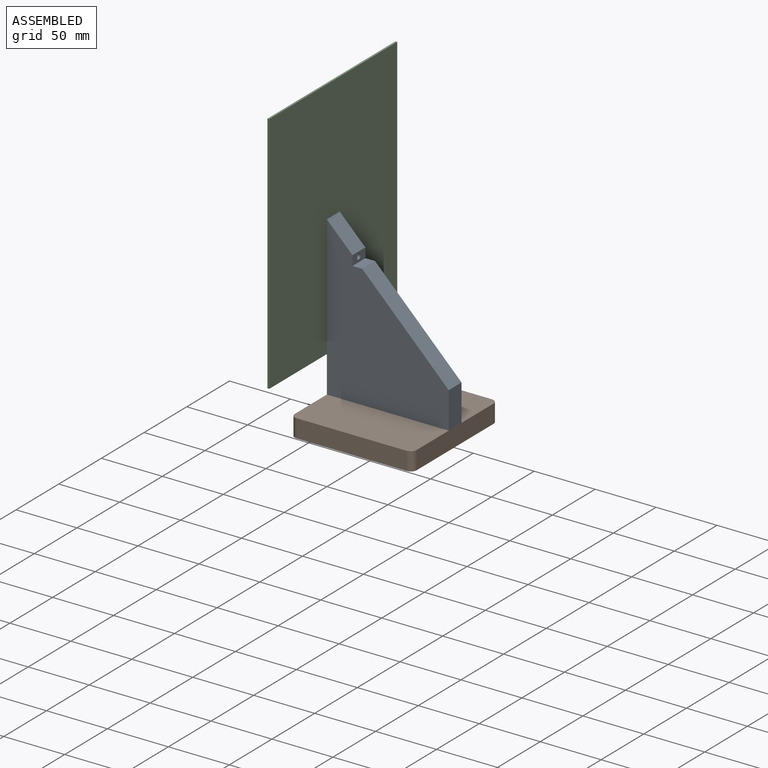
[diagram: assembled view]
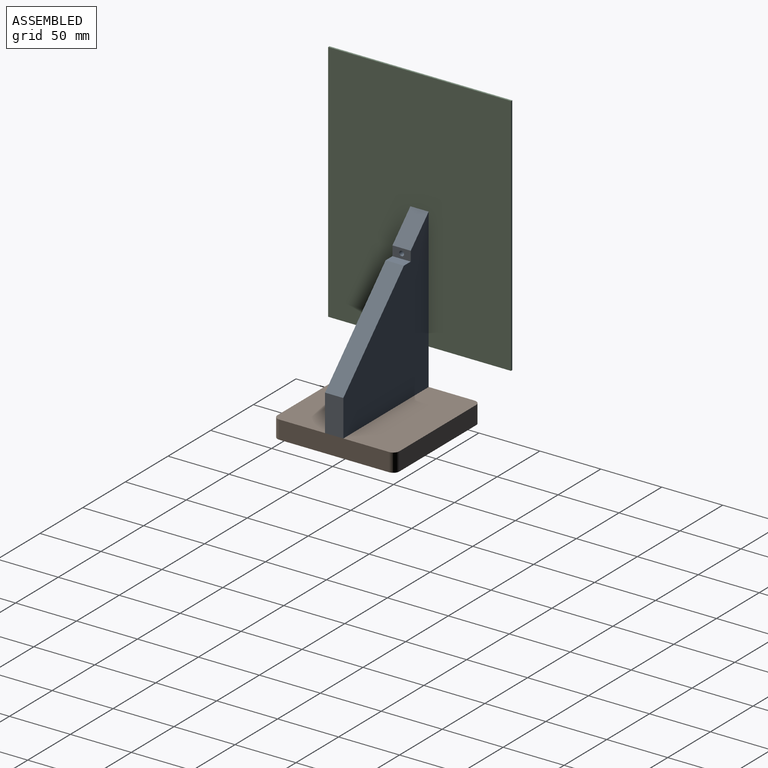
[diagram: assembled view, second angle]
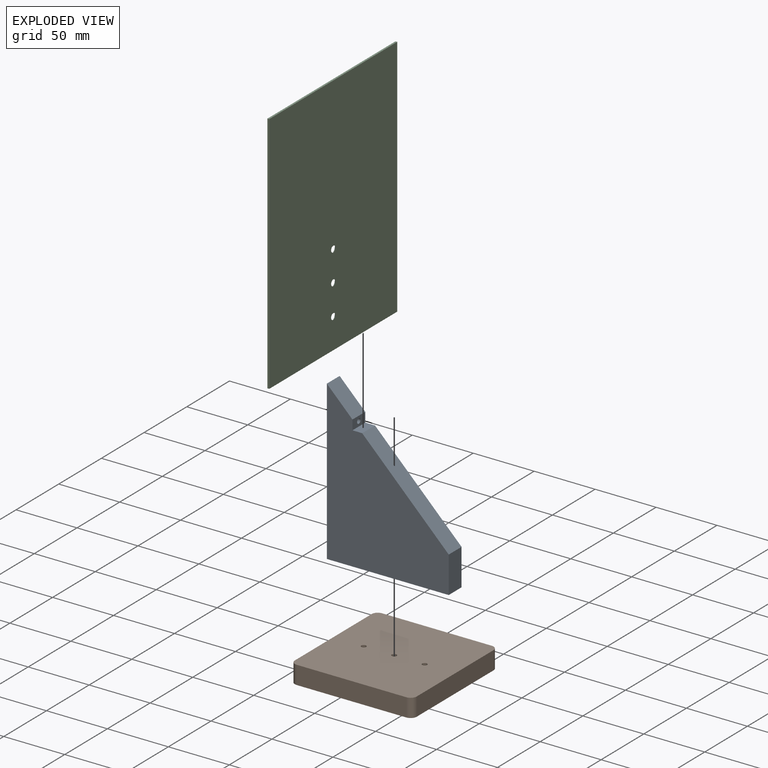
[diagram: exploded view]
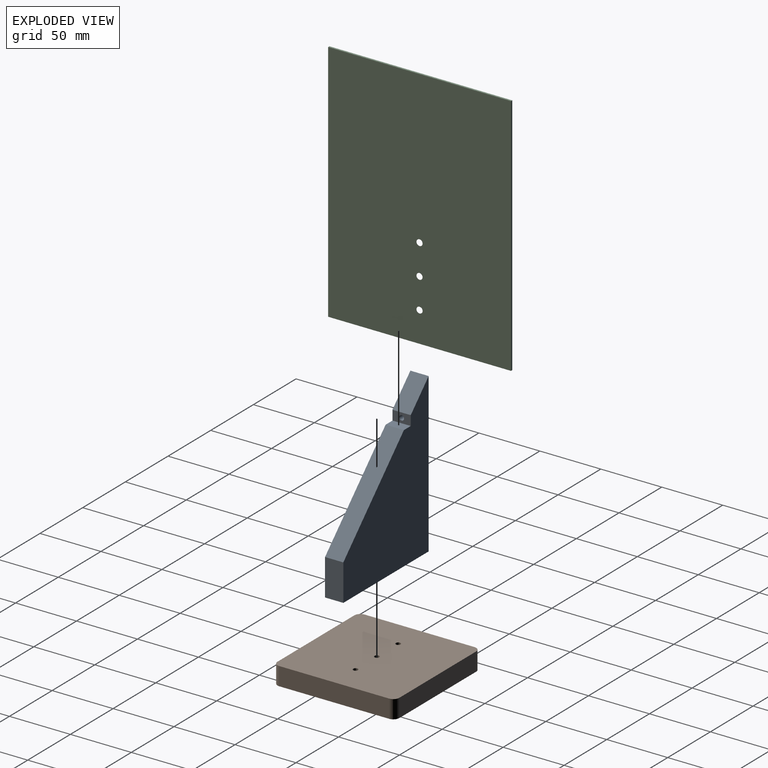
[diagram: exploded view, second angle]
ASSEMBLY  parts=3 mates=4
PART A: 23 faces, bbox 100x15x130 mm
  f0: plane 130x15mm, normal (-1,0,0), area 1891.1mm2, adj f1,f6,f7,f8,f10,f12,f15
  f1: plane 100x15mm, normal (0,0,-1), area 1462.3mm2, adj f0,f2,f7,f8,f18,f20,f22
  f2: plane 30x15mm, normal (1,0,0), area 450mm2, adj f1,f3,f7,f8
  f3: plane 71x71mm, normal (0.71,0,0.71), area 1506.1mm2, adj f2,f4,f7,f8
  f4: plane 15x8mm, normal (0,0,1), area 120mm2, adj f3,f5,f7,f8
  f5: plane 15x8mm, normal (1,0,0), area 107.4mm2, adj f4,f6,f7,f8,f9
  f6: plane 21x21mm, normal (0.71,0,0.71), area 445.5mm2, adj f0,f5,f7,f8
  f7: plane 130x100mm, normal (0,-1,0), area 7968mm2, adj f0,f1,f2,f3,f4,f5,f6
  f8: plane 130x100mm, normal (0,1,0), area 7968mm2, adj f0,f1,f2,f3,f4,f5,f6
  f9: cylinder r=2mm len=20.5mm, axis (-1,0,0), area 257.6mm2, adj f5,f10
  f10: cone r=2mm half-angle=45deg, axis (-1,0,0), area 10mm2, adj f0,f9
  f11: cylinder r=1.25mm len=13.75mm, axis (-1,0,0), area 108mm2, adj f12,f13
  f12: cone r=1.25mm half-angle=45deg, axis (-1,0,0), area 20.8mm2, adj f0,f11
  f13: cone r=0mm half-angle=59deg, axis (-1,0,0), area 5.7mm2, adj f11
  f14: cylinder r=1.25mm len=13.75mm, axis (-1,0,0), area 108mm2, adj f15,f16
  f15: cone r=1.25mm half-angle=45deg, axis (-1,0,0), area 20.8mm2, adj f0,f14
  f16: cone r=0mm half-angle=59deg, axis (-1,0,0), area 5.7mm2, adj f14
  f17: cone r=0mm half-angle=59deg, axis (0,0,-1), area 14.7mm2, adj f18
  f18: cylinder r=2mm len=10mm, axis (0,0,-1), area 125.7mm2, adj f1,f17
  f19: cone r=0mm half-angle=59deg, axis (0,0,-1), area 14.7mm2, adj f20
  f20: cylinder r=2mm len=10mm, axis (0,0,-1), area 125.7mm2, adj f1,f19
  f21: cone r=0mm half-angle=59deg, axis (0,0,-1), area 14.7mm2, adj f22
  f22: cylinder r=2mm len=10mm, axis (0,0,-1), area 125.7mm2, adj f1,f21
PART B: 16 faces, bbox 100x100x15 mm
  f0: plane 90x15mm, normal (1,0,0), area 1350mm2, adj f1,f7,f8,f9
  f1: cylinder r=5mm len=15mm, axis (0,0,1), area 117.8mm2, adj f0,f2,f8,f9
  f2: plane 90x15mm, normal (0,1,0), area 1350mm2, adj f1,f3,f8,f9
  f3: cylinder r=5mm len=15mm, axis (0,0,1), area 117.8mm2, adj f2,f4,f8,f9
  f4: plane 90x15mm, normal (-1,0,0), area 1350mm2, adj f3,f5,f8,f9
  f5: cylinder r=5mm len=15mm, axis (0,0,1), area 117.8mm2, adj f4,f6,f8,f9
  f6: plane 90x15mm, normal (0,-1,0), area 1350mm2, adj f5,f7,f8,f9
  f7: cylinder r=5mm len=15mm, axis (0,0,1), area 117.8mm2, adj f0,f6,f8,f9
  f8: plane 100x100mm, normal (0,0,-1), area 9978.5mm2, adj f0,f1,f2,f3,f4,f5,f6,f7
  f9: plane 100x100mm, normal (0,0,1), area 9940.8mm2, adj f0,f1,f2,f3,f4,f5,f6,f7
  f10: cone r=0mm half-angle=59deg, axis (0,0,1), area 14.7mm2, adj f11
  f11: cylinder r=2mm len=10mm, axis (0,0,1), area 125.7mm2, adj f9,f10
  f12: cone r=0mm half-angle=59deg, axis (0,0,1), area 14.7mm2, adj f13
  f13: cylinder r=2mm len=10mm, axis (0,0,1), area 125.7mm2, adj f9,f12
  f14: cone r=0mm half-angle=59deg, axis (0,0,1), area 14.7mm2, adj f15
  f15: cylinder r=2mm len=10mm, axis (0,0,1), area 125.7mm2, adj f9,f14
PART C: 9 faces, bbox 150x1.5x200 mm
  f0: plane 150x1.5mm, normal (0,0,1), area 225mm2, adj f1,f3,f4,f5
  f1: plane 200x1.5mm, normal (-1,0,0), area 300mm2, adj f0,f2,f4,f5
  f2: plane 150x1.5mm, normal (0,0,-1), area 225mm2, adj f1,f3,f4,f5
  f3: plane 200x1.5mm, normal (1,0,0), area 300mm2, adj f0,f2,f4,f5
  f4: plane 200x150mm, normal (0,1,0), area 29941.1mm2, adj f0,f1,f2,f3,f6,f7,f8
  f5: plane 200x150mm, normal (0,-1,0), area 29849.2mm2, adj f0,f1,f2,f3,f6,f7,f8
  f6: cone r=2mm half-angle=45deg, axis (0,-1,0), area 43.3mm2, adj f4,f5
  f7: cone r=2mm half-angle=45deg, axis (0,-1,0), area 43.3mm2, adj f4,f5
  f8: cone r=2mm half-angle=45deg, axis (0,-1,0), area 43.3mm2, adj f4,f5
PLACE A t=(14.95,29.38,23.77)mm
PLACE B t=(14.95,-28.12,-6.23)mm fixed
PLACE C rot(axis=(0,0,-1),90deg) t=(13.45,21.88,123.77)mm
MATE revolute C.f7 <-> A.f11  axis (1,0,0) through (14.95,21.88,73.77)mm
MATE revolute A.f14 <-> C.f8  axis (-1,0,0) through (14.95,21.88,48.77)mm
MATE revolute A.f19 <-> B.f12  axis (0,0,-1) through (64.95,21.88,-6.23)mm
MATE revolute B.f10 <-> A.f17  axis (0,0,1) through (39.95,21.88,-6.23)mm
